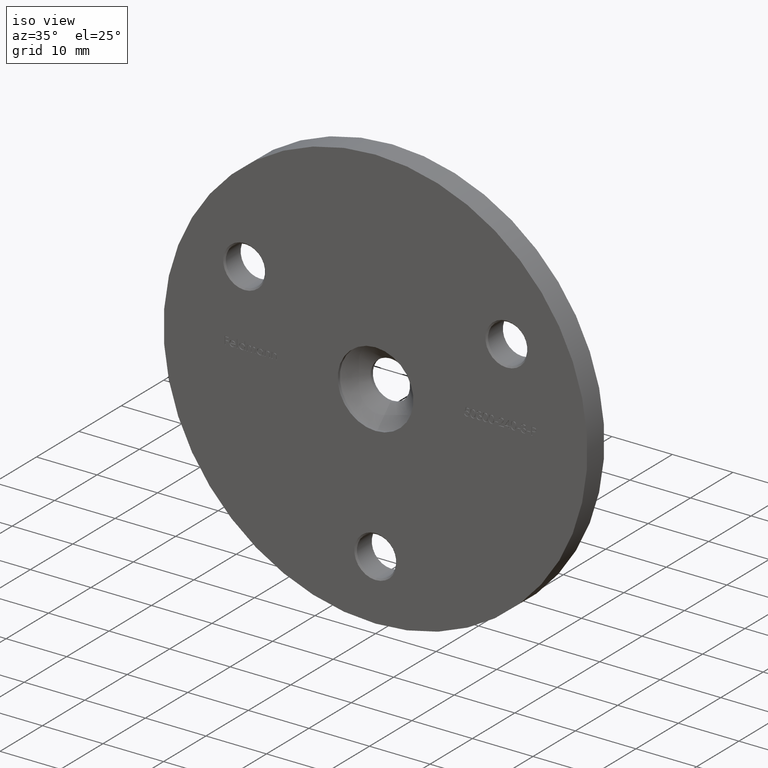
[diagram: clean part render]
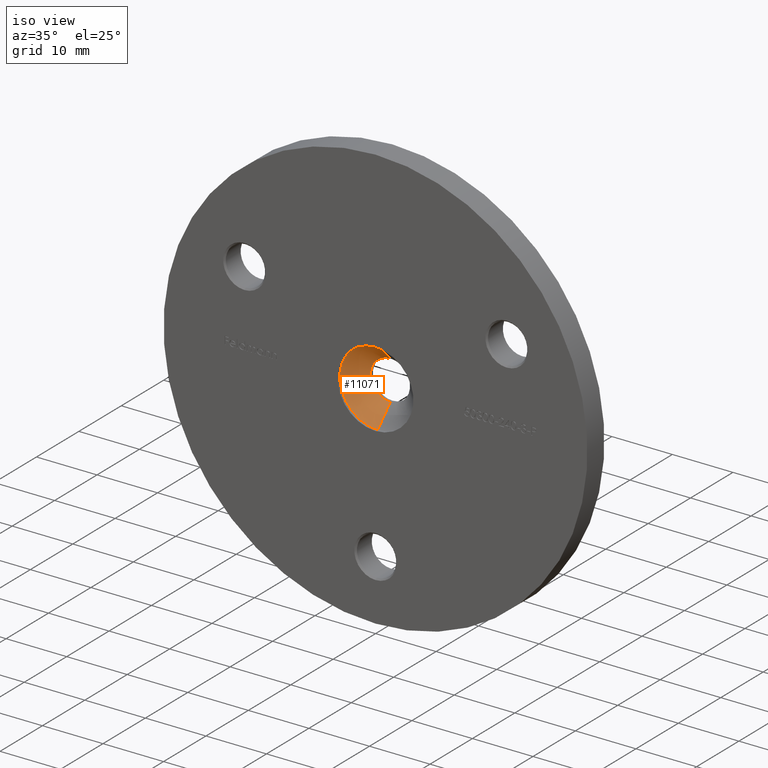
[diagram: same view with one face highlighted and labeled with its STEP entity id]
A machine part, iso view. The second image highlights one B-rep face of the part: STEP entity #11071.
In plain terms, the highlighted conical surface has half-angle 45 deg.
Its self-contained STEP definition (entity closure, byte-faithful):
#311 = CONICAL_SURFACE ( 'NONE', #8960, 6.250000000000000000, 0.7853981633974485010 ) ;
#347 = DIRECTION ( 'NONE',  ( -0.000000000000000000, -1.000000000000000000, -0.000000000000000000 ) ) ;
#649 = ORIENTED_EDGE ( 'NONE', *, *, #5933, .F. ) ;
#787 = ORIENTED_EDGE ( 'NONE', *, *, #11868, .T. ) ;
#2386 = VERTEX_POINT ( 'NONE', #11836 ) ;
#3033 = CARTESIAN_POINT ( 'NONE',  ( 0.000000000000000000, 3.499999999999998668, -3.250000000000000000 ) ) ;
#3509 = LINE ( 'NONE', #15278, #5137 ) ;
#3658 = DIRECTION ( 'NONE',  ( 8.659560562354936556E-17, -0.7071067811865473507, 0.7071067811865477948 ) ) ;
#4394 = CARTESIAN_POINT ( 'NONE',  ( 0.000000000000000000, 0.5000000000000000000, -6.250000000000000000 ) ) ;
#4973 = DIRECTION ( 'NONE',  ( -0.000000000000000000, -1.000000000000000000, -0.000000000000000000 ) ) ;
#5137 = VECTOR ( 'NONE', #3658, 999.9999999999998863 ) ;
#5169 = EDGE_CURVE ( 'NONE', #2386, #8030, #3509, .T. ) ;
#5314 = DIRECTION ( 'NONE',  ( 0.000000000000000000, 0.000000000000000000, -1.000000000000000000 ) ) ;
#5732 = DIRECTION ( 'NONE',  ( -0.000000000000000000, -1.000000000000000000, -0.000000000000000000 ) ) ;
#5933 = EDGE_CURVE ( 'NONE', #6199, #11147, #7130, .T. ) ;
#6199 = VERTEX_POINT ( 'NONE', #3033 ) ;
#6562 = AXIS2_PLACEMENT_3D ( 'NONE', #8975, #4973, #7607 ) ;
#7130 = LINE ( 'NONE', #15158, #9528 ) ;
#7261 = ORIENTED_EDGE ( 'NONE', *, *, #5169, .T. ) ;
#7533 = ORIENTED_EDGE ( 'NONE', *, *, #14289, .F. ) ;
#7546 = AXIS2_PLACEMENT_3D ( 'NONE', #16122, #5732, #8441 ) ;
#7607 = DIRECTION ( 'NONE',  ( 0.000000000000000000, 0.000000000000000000, -1.000000000000000000 ) ) ;
#8030 = VERTEX_POINT ( 'NONE', #10678 ) ;
#8441 = DIRECTION ( 'NONE',  ( 0.000000000000000000, 0.000000000000000000, -1.000000000000000000 ) ) ;
#8656 = FACE_OUTER_BOUND ( 'NONE', #16015, .T. ) ;
#8824 = CIRCLE ( 'NONE', #6562, 3.250000000000000000 ) ;
#8960 = AXIS2_PLACEMENT_3D ( 'NONE', #10692, #347, #5314 ) ;
#8975 = CARTESIAN_POINT ( 'NONE',  ( 0.000000000000000000, 3.499999999999998668, 0.000000000000000000 ) ) ;
#9528 = VECTOR ( 'NONE', #11408, 999.9999999999998863 ) ;
#10678 = CARTESIAN_POINT ( 'NONE',  ( 7.654042494670957606E-16, 0.5000000000000000000, 6.250000000000000000 ) ) ;
#10692 = CARTESIAN_POINT ( 'NONE',  ( 0.000000000000000000, 0.5000000000000000000, 0.000000000000000000 ) ) ;
#11071 = ADVANCED_FACE ( 'NONE', ( #8656 ), #311, .F. ) ;
#11147 = VERTEX_POINT ( 'NONE', #4394 ) ;
#11408 = DIRECTION ( 'NONE',  ( 0.000000000000000000, -0.7071067811865473507, -0.7071067811865477948 ) ) ;
#11836 = CARTESIAN_POINT ( 'NONE',  ( 3.980102097228897738E-16, 3.499999999999998668, 3.250000000000000000 ) ) ;
#11868 = EDGE_CURVE ( 'NONE', #8030, #11147, #14459, .T. ) ;
#14289 = EDGE_CURVE ( 'NONE', #2386, #6199, #8824, .T. ) ;
#14459 = CIRCLE ( 'NONE', #7546, 6.250000000000000000 ) ;
#15158 = CARTESIAN_POINT ( 'NONE',  ( 0.000000000000000000, 0.5000000000000000000, -6.250000000000000000 ) ) ;
#15278 = CARTESIAN_POINT ( 'NONE',  ( 7.654042494670957606E-16, 0.5000000000000000000, 6.250000000000000000 ) ) ;
#16015 = EDGE_LOOP ( 'NONE', ( #7533, #7261, #787, #649 ) ) ;
#16122 = CARTESIAN_POINT ( 'NONE',  ( 0.000000000000000000, 0.5000000000000000000, 0.000000000000000000 ) ) ;